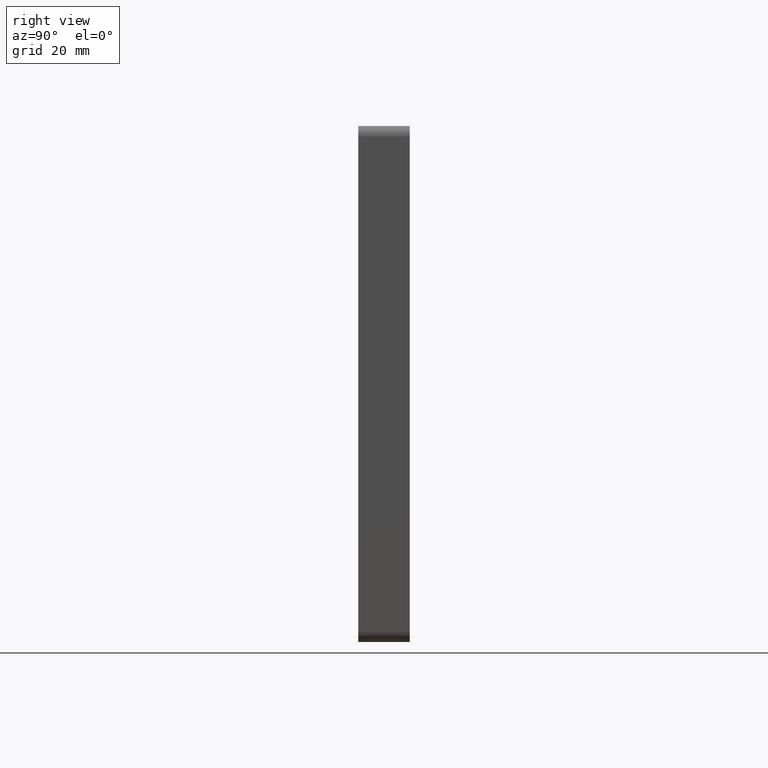
[diagram: clean part render]
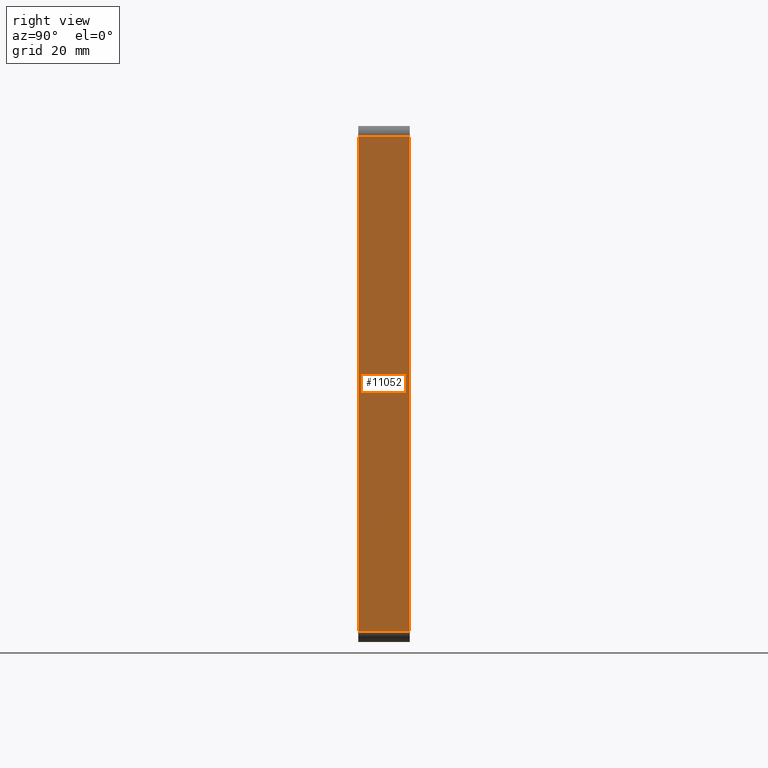
[diagram: same view with one face highlighted and labeled with its STEP entity id]
A machine part, right view. The second image highlights one B-rep face of the part: STEP entity #11052.
In plain terms, the highlighted planar face has unit normal (-1, 0, 0).
Its self-contained STEP definition (entity closure, byte-faithful):
#454 = LINE ( 'NONE', #2790, #13206 ) ;
#763 = DIRECTION ( 'NONE',  ( -2.775557561562891351E-16, -0.000000000000000000, -1.000000000000000000 ) ) ;
#812 = CARTESIAN_POINT ( 'NONE',  ( 49.99999999999998579, 0.000000000000000000, -49.99999999999999289 ) ) ;
#1848 = DIRECTION ( 'NONE',  ( -1.000000000000000000, 0.000000000000000000, 2.775557561562891351E-16 ) ) ;
#1949 = EDGE_CURVE ( 'NONE', #6167, #7433, #8313, .T. ) ;
#2381 = AXIS2_PLACEMENT_3D ( 'NONE', #2756, #1848, #3980 ) ;
#2478 = ORIENTED_EDGE ( 'NONE', *, *, #3837, .T. ) ;
#2756 = CARTESIAN_POINT ( 'NONE',  ( 49.99999999999998579, 10.00000000000000000, -49.99999999999999289 ) ) ;
#2790 = CARTESIAN_POINT ( 'NONE',  ( 49.99999999999998579, 10.00000000000000000, -49.99999999999999289 ) ) ;
#2933 = CARTESIAN_POINT ( 'NONE',  ( 49.99999999999998579, 10.00000000000000000, -47.99999999999999289 ) ) ;
#3038 = EDGE_CURVE ( 'NONE', #4014, #11029, #454, .T. ) ;
#3507 = VECTOR ( 'NONE', #9410, 1000.000000000000000 ) ;
#3837 = EDGE_CURVE ( 'NONE', #4014, #6167, #5214, .T. ) ;
#3980 = DIRECTION ( 'NONE',  ( 2.775557561562891351E-16, 0.000000000000000000, 1.000000000000000000 ) ) ;
#4014 = VERTEX_POINT ( 'NONE', #7508 ) ;
#5214 = LINE ( 'NONE', #6107, #3507 ) ;
#5436 = VECTOR ( 'NONE', #763, 1000.000000000000000 ) ;
#5831 = CARTESIAN_POINT ( 'NONE',  ( 50.00000000000001421, 0.000000000000000000, 48.00000000000000711 ) ) ;
#6107 = CARTESIAN_POINT ( 'NONE',  ( 50.00000000000001421, 10.00000000000000000, 48.00000000000000711 ) ) ;
#6167 = VERTEX_POINT ( 'NONE', #5831 ) ;
#7433 = VERTEX_POINT ( 'NONE', #9235 ) ;
#7508 = CARTESIAN_POINT ( 'NONE',  ( 50.00000000000001421, 10.00000000000000000, 48.00000000000000711 ) ) ;
#7920 = ORIENTED_EDGE ( 'NONE', *, *, #1949, .T. ) ;
#8313 = LINE ( 'NONE', #812, #5436 ) ;
#8362 = PLANE ( 'NONE',  #2381 ) ;
#8792 = EDGE_LOOP ( 'NONE', ( #7920, #8836, #13349, #2478 ) ) ;
#8836 = ORIENTED_EDGE ( 'NONE', *, *, #10411, .T. ) ;
#8988 = DIRECTION ( 'NONE',  ( -0.000000000000000000, 1.000000000000000000, -0.000000000000000000 ) ) ;
#9235 = CARTESIAN_POINT ( 'NONE',  ( 49.99999999999998579, 0.000000000000000000, -47.99999999999999289 ) ) ;
#9410 = DIRECTION ( 'NONE',  ( 0.000000000000000000, -1.000000000000000000, 0.000000000000000000 ) ) ;
#10035 = FACE_OUTER_BOUND ( 'NONE', #8792, .T. ) ;
#10411 = EDGE_CURVE ( 'NONE', #7433, #11029, #12743, .T. ) ;
#11029 = VERTEX_POINT ( 'NONE', #2933 ) ;
#11052 = ADVANCED_FACE ( 'NONE', ( #10035 ), #8362, .F. ) ;
#12270 = CARTESIAN_POINT ( 'NONE',  ( 49.99999999999998579, 10.00000000000000000, -47.99999999999999289 ) ) ;
#12565 = DIRECTION ( 'NONE',  ( -2.775557561562891351E-16, -0.000000000000000000, -1.000000000000000000 ) ) ;
#12743 = LINE ( 'NONE', #12270, #12922 ) ;
#12922 = VECTOR ( 'NONE', #8988, 1000.000000000000000 ) ;
#13206 = VECTOR ( 'NONE', #12565, 1000.000000000000000 ) ;
#13349 = ORIENTED_EDGE ( 'NONE', *, *, #3038, .F. ) ;